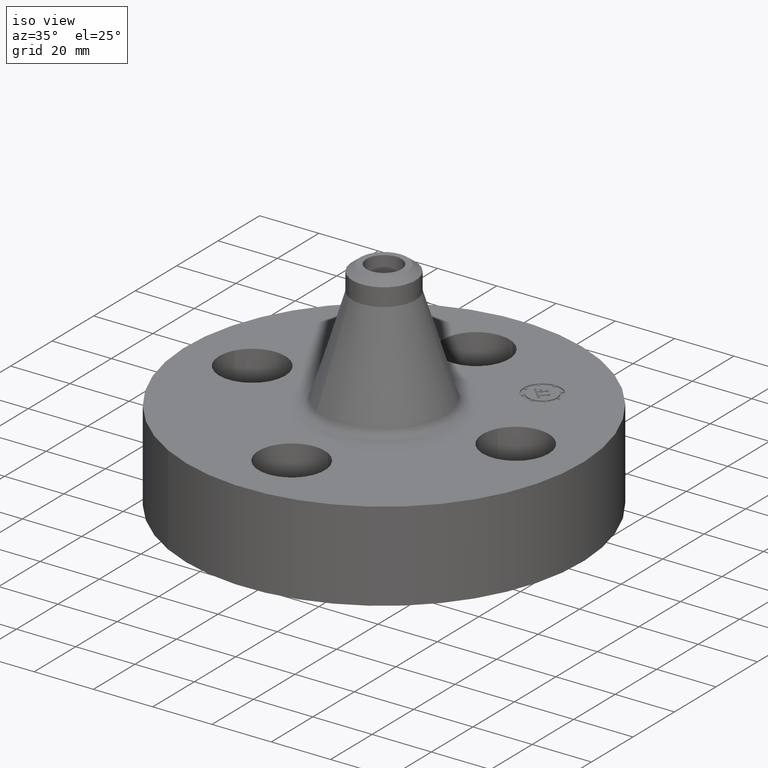
[diagram: clean part render]
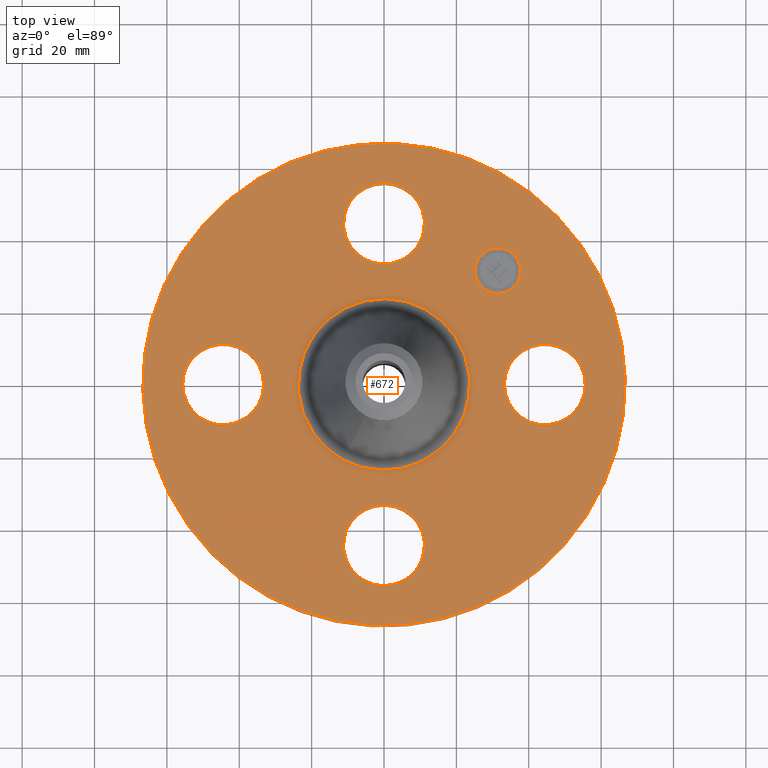
[diagram: tour spotlight — one face highlighted and labeled with its STEP entity id]
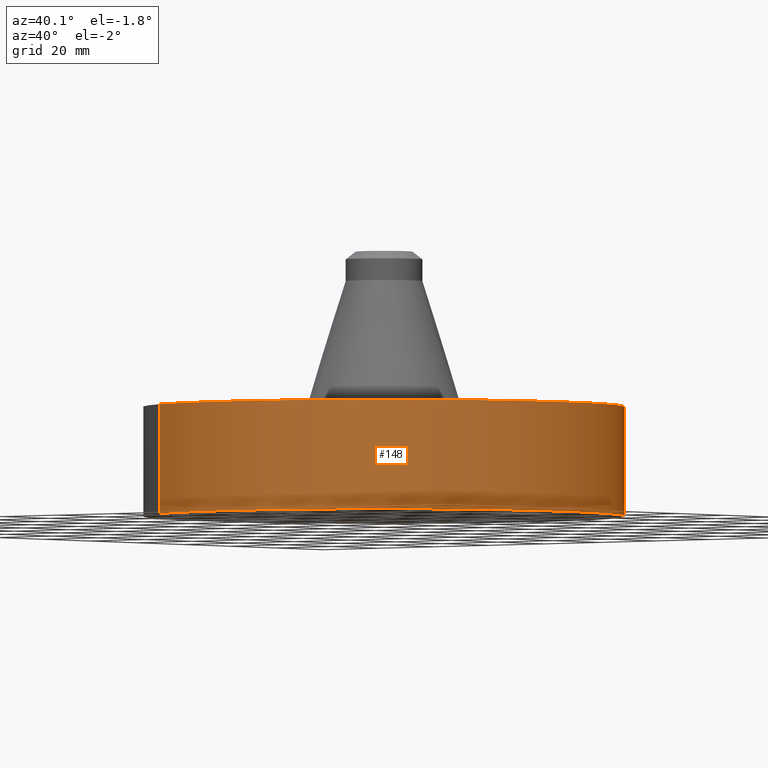
[diagram: tour spotlight — one face highlighted and labeled with its STEP entity id]
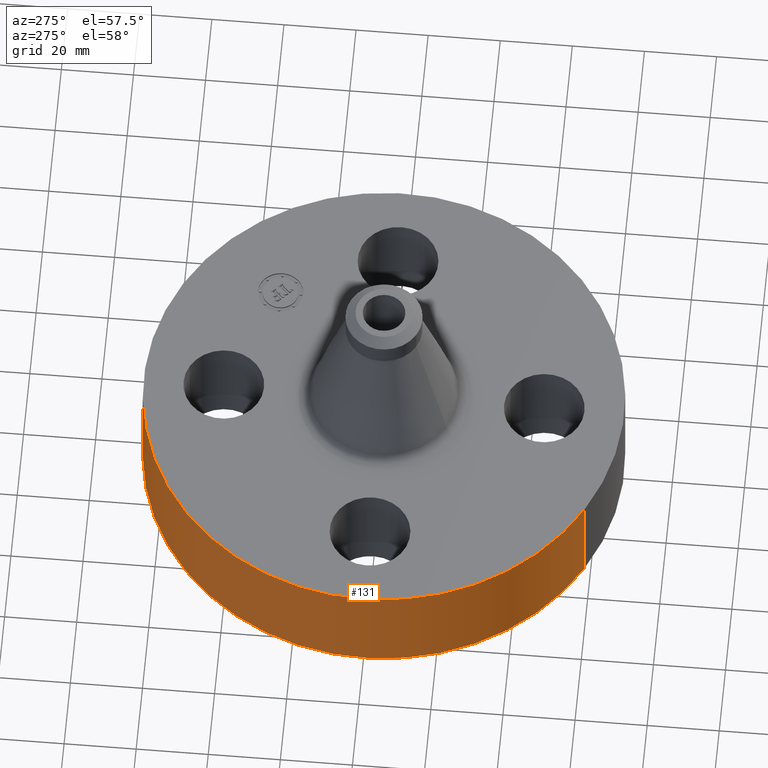
[diagram: tour spotlight — one face highlighted and labeled with its STEP entity id]
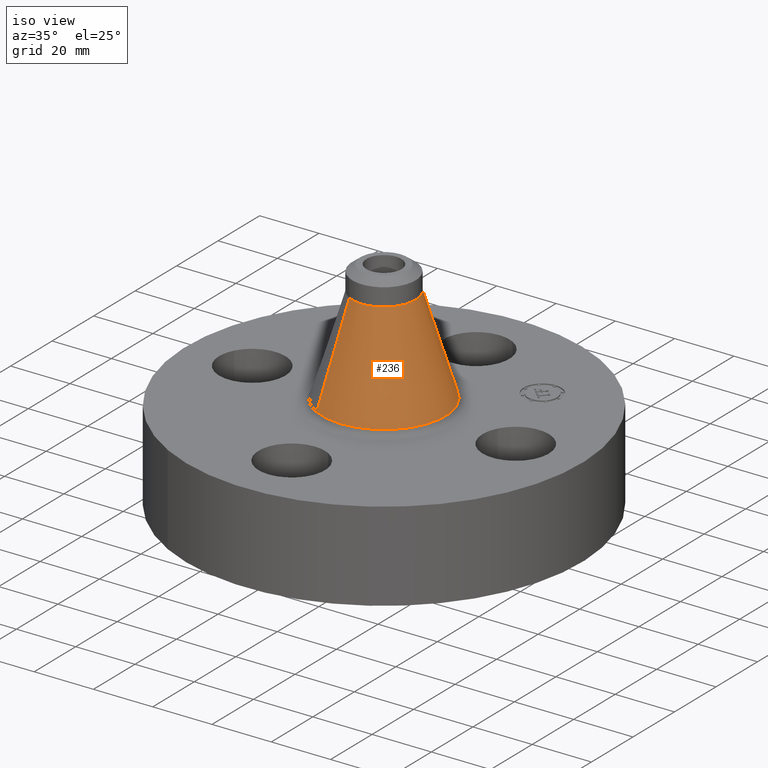
[diagram: tour spotlight — one face highlighted and labeled with its STEP entity id]
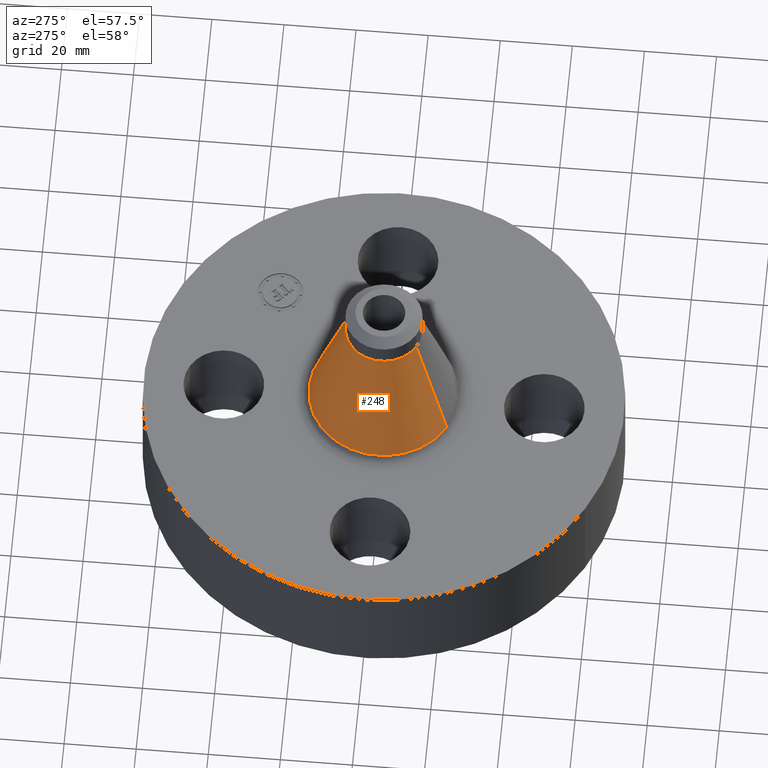
[diagram: tour spotlight — one face highlighted and labeled with its STEP entity id]
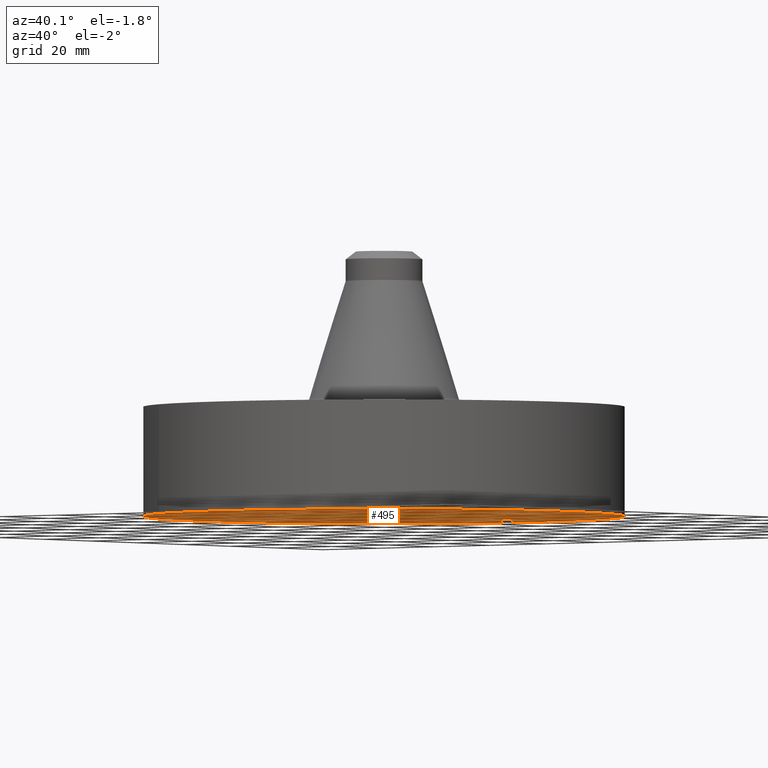
[diagram: tour spotlight — one face highlighted and labeled with its STEP entity id]
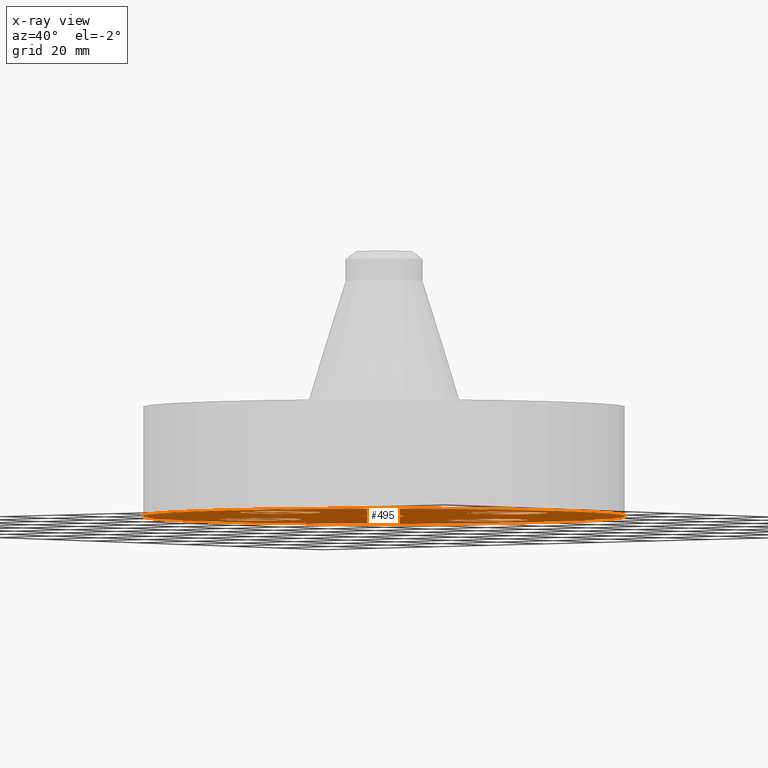
[diagram: x-ray of the same camera — body ghosted, this tour face saturated]
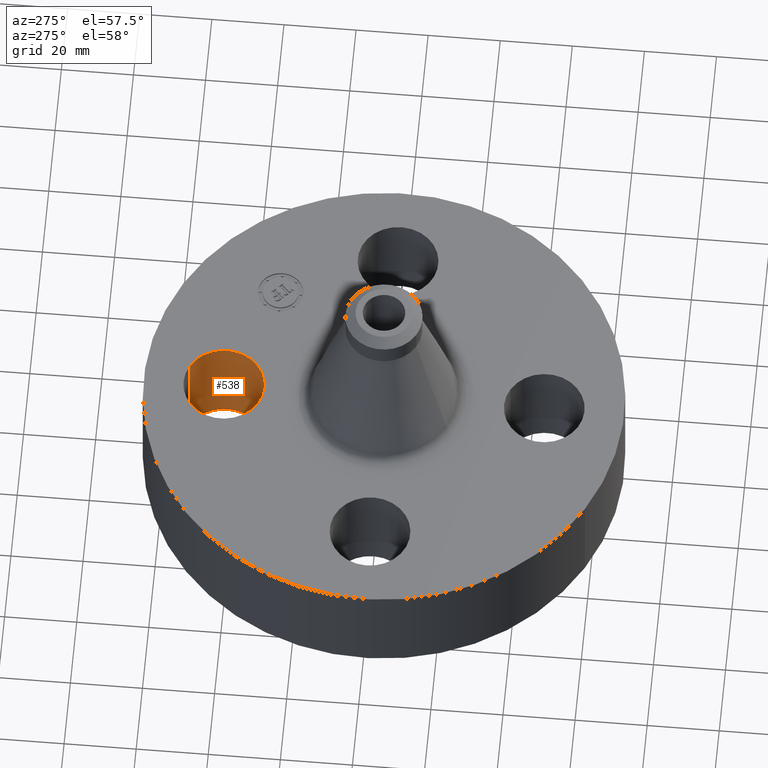
[diagram: tour spotlight — one face highlighted and labeled with its STEP entity id]
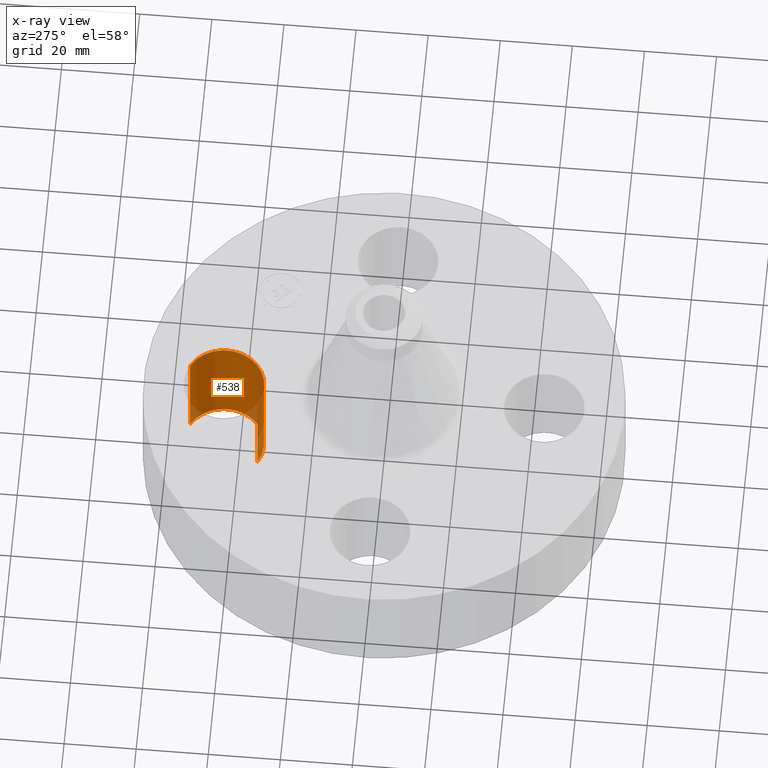
[diagram: x-ray of the same camera — body ghosted, this tour face saturated]
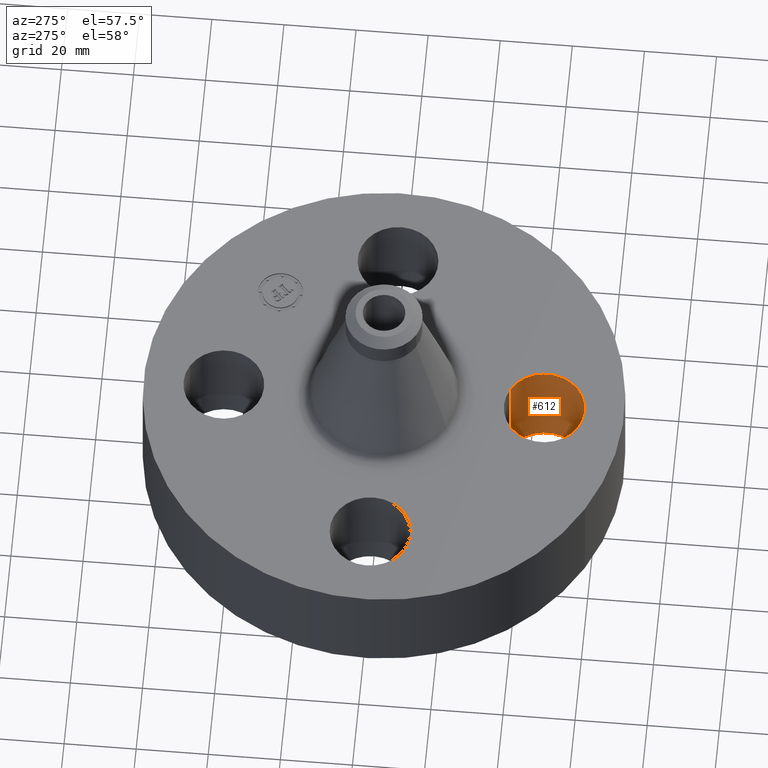
[diagram: tour spotlight — one face highlighted and labeled with its STEP entity id]
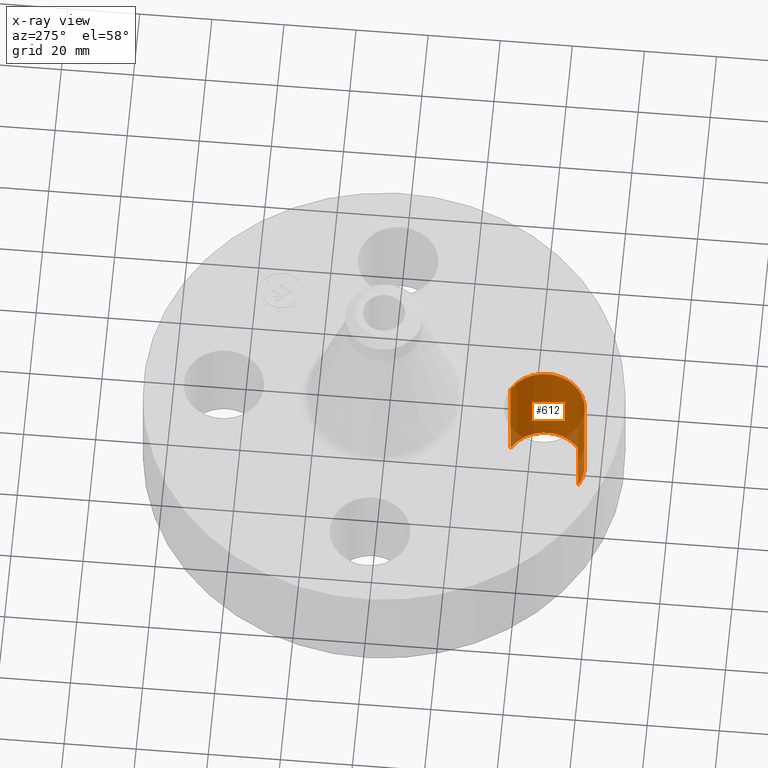
[diagram: x-ray of the same camera — body ghosted, this tour face saturated]
A machine part: a face-by-face anatomy tour. The part has 408 B-rep faces; the first image is the clean iso view, then the 8 largest visible faces are spotlighted one at a time (largest first), each with its STEP entity span.

Face 1 — top view, entity #672. In plain terms, the highlighted planar face has unit normal (0, 0, -1).
Definition (entity closure, byte-faithful):
#65=AXIS2_PLACEMENT_3D('Circle Axis2P3D',#63,#64,$) ;
#82=AXIS2_PLACEMENT_3D('Circle Axis2P3D',#80,#81,$) ;
#115=AXIS2_PLACEMENT_3D('Circle Axis2P3D',#113,#114,$) ;
#139=AXIS2_PLACEMENT_3D('Circle Axis2P3D',#137,#138,$) ;
#156=AXIS2_PLACEMENT_3D('Circle Axis2P3D',#154,#155,$) ;
#191=AXIS2_PLACEMENT_3D('Circle Axis2P3D',#189,#190,$) ;
#517=AXIS2_PLACEMENT_3D('Circle Axis2P3D',#515,#516,$) ;
#529=AXIS2_PLACEMENT_3D('Circle Axis2P3D',#527,#528,$) ;
#560=AXIS2_PLACEMENT_3D('Circle Axis2P3D',#558,#559,$) ;
#572=AXIS2_PLACEMENT_3D('Circle Axis2P3D',#570,#571,$) ;
#603=AXIS2_PLACEMENT_3D('Circle Axis2P3D',#601,#602,$) ;
#615=AXIS2_PLACEMENT_3D('Circle Axis2P3D',#613,#614,$) ;
#628=AXIS2_PLACEMENT_3D('Plane Axis2P3D',#625,#626,#627) ;
#656=AXIS2_PLACEMENT_3D('Circle Axis2P3D',#654,#655,$) ;
#665=AXIS2_PLACEMENT_3D('Circle Axis2P3D',#663,#664,$) ;
#46=CARTESIAN_POINT('Vertex',(1.36386367277,0.210947236987,1.19)) ;
#60=CARTESIAN_POINT('Vertex',(2.13613632724,-0.210947236987,1.19)) ;
#63=CARTESIAN_POINT('Axis2P3D Location',(1.75000000001,0.,1.19)) ;
#80=CARTESIAN_POINT('Axis2P3D Location',(1.75000000001,0.,1.19)) ;
#110=CARTESIAN_POINT('Vertex',(-1.25849203884,-2.30365422497,1.19)) ;
#113=CARTESIAN_POINT('Axis2P3D Location',(0.,0.,1.19)) ;
#117=CARTESIAN_POINT('Vertex',(1.25849203884,2.30365422497,1.19)) ;
#137=CARTESIAN_POINT('Axis2P3D Location',(0.,0.,1.19)) ;
#154=CARTESIAN_POINT('Axis2P3D Location',(0.,0.,1.19)) ;
#158=CARTESIAN_POINT('Vertex',(0.44750257712,0.819147972853,1.19)) ;
#160=CARTESIAN_POINT('Vertex',(-0.44750257712,-0.819147972853,1.19)) ;
#189=CARTESIAN_POINT('Axis2P3D Location',(0.,0.,1.19)) ;
#505=CARTESIAN_POINT('Vertex',(-0.210947236987,1.36386367277,1.19)) ;
#512=CARTESIAN_POINT('Vertex',(0.210947236987,2.13613632724,1.19)) ;
#515=CARTESIAN_POINT('Axis2P3D Location',(-3.21469784777E-016,1.75000000001,1.19)) ;
#527=CARTESIAN_POINT('Axis2P3D Location',(-3.21469784777E-016,1.75000000001,1.19)) ;
#548=CARTESIAN_POINT('Vertex',(-1.36386367277,-0.210947236987,1.19)) ;
#555=CARTESIAN_POINT('Vertex',(-2.13613632724,0.210947236987,1.19)) ;
#558=CARTESIAN_POINT('Axis2P3D Location',(-1.75000000001,-2.14313189852E-016,1.19)) ;
#570=CARTESIAN_POINT('Axis2P3D Location',(-1.75000000001,-2.14313189852E-016,1.19)) ;
#591=CARTESIAN_POINT('Vertex',(0.210947236987,-1.36386367277,1.19)) ;
#598=CARTESIAN_POINT('Vertex',(-0.210947236987,-2.13613632724,1.19)) ;
#601=CARTESIAN_POINT('Axis2P3D Location',(1.07156594926E-016,-1.75000000001,1.19)) ;
#613=CARTESIAN_POINT('Axis2P3D Location',(1.07156594926E-016,-1.75000000001,1.19)) ;
#625=CARTESIAN_POINT('Axis2P3D Location',(0.,2.62500000001,1.19)) ;
#654=CARTESIAN_POINT('Axis2P3D Location',(1.23743686708,1.23743686708,1.19)) ;
#658=CARTESIAN_POINT('Vertex',(1.06242793874,1.41244579543,1.19)) ;
#660=CARTESIAN_POINT('Vertex',(1.41244579543,1.06242793874,1.19)) ;
#663=CARTESIAN_POINT('Axis2P3D Location',(1.23743686708,1.23743686708,1.19)) ;
#64=DIRECTION('Axis2P3D Direction',(0.,-0.,-0.0393700787402)) ;
#81=DIRECTION('Axis2P3D Direction',(0.,-0.,-0.0393700787402)) ;
#114=DIRECTION('Axis2P3D Direction',(0.,0.,-0.0393700787402)) ;
#138=DIRECTION('Axis2P3D Direction',(0.,0.,-0.0393700787402)) ;
#155=DIRECTION('Axis2P3D Direction',(0.,0.,-0.0393700787402)) ;
#190=DIRECTION('Axis2P3D Direction',(0.,0.,-0.0393700787402)) ;
#516=DIRECTION('Axis2P3D Direction',(0.,0.,-0.0393700787402)) ;
#528=DIRECTION('Axis2P3D Direction',(0.,0.,-0.0393700787402)) ;
#559=DIRECTION('Axis2P3D Direction',(-0.,0.,-0.0393700787402)) ;
#571=DIRECTION('Axis2P3D Direction',(-0.,0.,-0.0393700787402)) ;
#602=DIRECTION('Axis2P3D Direction',(0.,-0.,-0.0393700787402)) ;
#614=DIRECTION('Axis2P3D Direction',(0.,-0.,-0.0393700787402)) ;
#626=DIRECTION('Axis2P3D Direction',(0.,0.,-0.0393700787402)) ;
#627=DIRECTION('Axis2P3D XDirection',(0.0393700787402,0.,0.)) ;
#655=DIRECTION('Axis2P3D Direction',(0.,0.,-0.0393700787402)) ;
#664=DIRECTION('Axis2P3D Direction',(0.,0.,-0.0393700787402)) ;
#631=ORIENTED_EDGE('',*,*,#141,.F.) ;
#632=ORIENTED_EDGE('',*,*,#119,.F.) ;
#635=ORIENTED_EDGE('',*,*,#67,.T.) ;
#636=ORIENTED_EDGE('',*,*,#84,.T.) ;
#639=ORIENTED_EDGE('',*,*,#193,.T.) ;
#640=ORIENTED_EDGE('',*,*,#162,.T.) ;
#643=ORIENTED_EDGE('',*,*,#617,.T.) ;
#644=ORIENTED_EDGE('',*,*,#605,.T.) ;
#647=ORIENTED_EDGE('',*,*,#574,.T.) ;
#648=ORIENTED_EDGE('',*,*,#562,.T.) ;
#651=ORIENTED_EDGE('',*,*,#531,.T.) ;
#652=ORIENTED_EDGE('',*,*,#519,.T.) ;
#669=ORIENTED_EDGE('',*,*,#662,.T.) ;
#670=ORIENTED_EDGE('',*,*,#667,.T.) ;
#637=FACE_BOUND('',#634,.T.) ;
#641=FACE_BOUND('',#638,.T.) ;
#645=FACE_BOUND('',#642,.T.) ;
#649=FACE_BOUND('',#646,.T.) ;
#653=FACE_BOUND('',#650,.T.) ;
#671=FACE_BOUND('',#668,.T.) ;
#672=ADVANCED_FACE('PartBody',(#633,#637,#641,#645,#649,#653,#671),#629,.F.) ;
#66=CIRCLE('generated circle',#65,0.440000000002) ;
#83=CIRCLE('generated circle',#82,0.440000000002) ;
#116=CIRCLE('generated circle',#115,2.62500000001) ;
#140=CIRCLE('generated circle',#139,2.62500000001) ;
#157=CIRCLE('generated circle',#156,0.933414140646) ;
#192=CIRCLE('generated circle',#191,0.933414140646) ;
#518=CIRCLE('generated circle',#517,0.440000000002) ;
#530=CIRCLE('generated circle',#529,0.440000000002) ;
#561=CIRCLE('generated circle',#560,0.440000000002) ;
#573=CIRCLE('generated circle',#572,0.440000000002) ;
#604=CIRCLE('generated circle',#603,0.440000000002) ;
#616=CIRCLE('generated circle',#615,0.440000000002) ;
#657=CIRCLE('generated circle',#656,0.247500000001) ;
#666=CIRCLE('generated circle',#665,0.247500000001) ;
#67=EDGE_CURVE('',#47,#61,#66,.T.) ;
#84=EDGE_CURVE('',#61,#47,#83,.T.) ;
#119=EDGE_CURVE('',#111,#118,#116,.T.) ;
#141=EDGE_CURVE('',#118,#111,#140,.T.) ;
#162=EDGE_CURVE('',#159,#161,#157,.T.) ;
#193=EDGE_CURVE('',#161,#159,#192,.T.) ;
#519=EDGE_CURVE('',#506,#513,#518,.T.) ;
#531=EDGE_CURVE('',#513,#506,#530,.T.) ;
#562=EDGE_CURVE('',#549,#556,#561,.T.) ;
#574=EDGE_CURVE('',#556,#549,#573,.T.) ;
#605=EDGE_CURVE('',#592,#599,#604,.T.) ;
#617=EDGE_CURVE('',#599,#592,#616,.T.) ;
#662=EDGE_CURVE('',#659,#661,#657,.T.) ;
#667=EDGE_CURVE('',#661,#659,#666,.T.) ;
#630=EDGE_LOOP('',(#631,#632)) ;
#634=EDGE_LOOP('',(#635,#636)) ;
#638=EDGE_LOOP('',(#639,#640)) ;
#642=EDGE_LOOP('',(#643,#644)) ;
#646=EDGE_LOOP('',(#647,#648)) ;
#650=EDGE_LOOP('',(#651,#652)) ;
#668=EDGE_LOOP('',(#669,#670)) ;
#633=FACE_OUTER_BOUND('',#630,.T.) ;
#629=PLANE('',#628) ;
#47=VERTEX_POINT('',#46) ;
#61=VERTEX_POINT('',#60) ;
#111=VERTEX_POINT('',#110) ;
#118=VERTEX_POINT('',#117) ;
#159=VERTEX_POINT('',#158) ;
#161=VERTEX_POINT('',#160) ;
#506=VERTEX_POINT('',#505) ;
#513=VERTEX_POINT('',#512) ;
#549=VERTEX_POINT('',#548) ;
#556=VERTEX_POINT('',#555) ;
#592=VERTEX_POINT('',#591) ;
#599=VERTEX_POINT('',#598) ;
#659=VERTEX_POINT('',#658) ;
#661=VERTEX_POINT('',#660) ;

Face 2 — auxiliary view, entity #148. In plain terms, the highlighted cylindrical surface (partial cylindrical patch) has radius 66.675 mm, axis along (0, 0, -1).
Definition (entity closure, byte-faithful):
#95=AXIS2_PLACEMENT_3D('Cylinder Axis2P3D',#92,#93,#94) ;
#134=AXIS2_PLACEMENT_3D('Circle Axis2P3D',#132,#133,$) ;
#139=AXIS2_PLACEMENT_3D('Circle Axis2P3D',#137,#138,$) ;
#92=CARTESIAN_POINT('Axis2P3D Location',(0.,0.,1.44000000001)) ;
#101=CARTESIAN_POINT('Vertex',(-1.25849203884,-2.30365422497,0.)) ;
#103=CARTESIAN_POINT('Vertex',(1.25849203884,2.30365422497,0.)) ;
#106=CARTESIAN_POINT('Line Origine',(-1.25849203884,-2.30365422497,0.595000000002)) ;
#110=CARTESIAN_POINT('Vertex',(-1.25849203884,-2.30365422497,1.19)) ;
#117=CARTESIAN_POINT('Vertex',(1.25849203884,2.30365422497,1.19)) ;
#120=CARTESIAN_POINT('Line Origine',(1.25849203884,2.30365422497,0.595000000002)) ;
#132=CARTESIAN_POINT('Axis2P3D Location',(0.,0.,0.)) ;
#137=CARTESIAN_POINT('Axis2P3D Location',(0.,0.,1.19)) ;
#93=DIRECTION('Axis2P3D Direction',(0.,0.,-0.0393700787402)) ;
#94=DIRECTION('Axis2P3D XDirection',(0.0188750212049,0.0345504945626,0.)) ;
#107=DIRECTION('Vector Direction',(0.,0.,-0.0393700787402)) ;
#121=DIRECTION('Vector Direction',(0.,0.,-0.0393700787402)) ;
#133=DIRECTION('Axis2P3D Direction',(0.,0.,-0.0393700787402)) ;
#138=DIRECTION('Axis2P3D Direction',(0.,0.,-0.0393700787402)) ;
#108=VECTOR('Line Direction',#107,0.0393700787402) ;
#122=VECTOR('Line Direction',#121,0.0393700787402) ;
#143=ORIENTED_EDGE('',*,*,#136,.F.) ;
#144=ORIENTED_EDGE('',*,*,#124,.T.) ;
#145=ORIENTED_EDGE('',*,*,#141,.T.) ;
#146=ORIENTED_EDGE('',*,*,#112,.F.) ;
#148=ADVANCED_FACE('PartBody',(#147),#96,.T.) ;
#135=CIRCLE('generated circle',#134,2.62500000001) ;
#140=CIRCLE('generated circle',#139,2.62500000001) ;
#96=CYLINDRICAL_SURFACE('generated cylinder',#95,2.62500000001) ;
#112=EDGE_CURVE('',#102,#111,#109,.F.) ;
#124=EDGE_CURVE('',#104,#118,#123,.F.) ;
#136=EDGE_CURVE('',#104,#102,#135,.T.) ;
#141=EDGE_CURVE('',#118,#111,#140,.T.) ;
#142=EDGE_LOOP('',(#143,#144,#145,#146)) ;
#147=FACE_OUTER_BOUND('',#142,.T.) ;
#109=LINE('Line',#106,#108) ;
#123=LINE('Line',#120,#122) ;
#102=VERTEX_POINT('',#101) ;
#104=VERTEX_POINT('',#103) ;
#111=VERTEX_POINT('',#110) ;
#118=VERTEX_POINT('',#117) ;

Face 3 — auxiliary view, entity #131. In plain terms, the highlighted cylindrical surface (partial cylindrical patch) has radius 66.675 mm, axis along (0, 0, -1).
Definition (entity closure, byte-faithful):
#95=AXIS2_PLACEMENT_3D('Cylinder Axis2P3D',#92,#93,#94) ;
#99=AXIS2_PLACEMENT_3D('Circle Axis2P3D',#97,#98,$) ;
#115=AXIS2_PLACEMENT_3D('Circle Axis2P3D',#113,#114,$) ;
#92=CARTESIAN_POINT('Axis2P3D Location',(0.,0.,1.44000000001)) ;
#97=CARTESIAN_POINT('Axis2P3D Location',(0.,0.,0.)) ;
#101=CARTESIAN_POINT('Vertex',(-1.25849203884,-2.30365422497,0.)) ;
#103=CARTESIAN_POINT('Vertex',(1.25849203884,2.30365422497,0.)) ;
#106=CARTESIAN_POINT('Line Origine',(-1.25849203884,-2.30365422497,0.595000000002)) ;
#110=CARTESIAN_POINT('Vertex',(-1.25849203884,-2.30365422497,1.19)) ;
#113=CARTESIAN_POINT('Axis2P3D Location',(0.,0.,1.19)) ;
#117=CARTESIAN_POINT('Vertex',(1.25849203884,2.30365422497,1.19)) ;
#120=CARTESIAN_POINT('Line Origine',(1.25849203884,2.30365422497,0.595000000002)) ;
#93=DIRECTION('Axis2P3D Direction',(0.,0.,-0.0393700787402)) ;
#94=DIRECTION('Axis2P3D XDirection',(0.0188750212049,0.0345504945626,0.)) ;
#98=DIRECTION('Axis2P3D Direction',(0.,0.,-0.0393700787402)) ;
#107=DIRECTION('Vector Direction',(0.,0.,-0.0393700787402)) ;
#114=DIRECTION('Axis2P3D Direction',(0.,0.,-0.0393700787402)) ;
#121=DIRECTION('Vector Direction',(0.,0.,-0.0393700787402)) ;
#108=VECTOR('Line Direction',#107,0.0393700787402) ;
#122=VECTOR('Line Direction',#121,0.0393700787402) ;
#126=ORIENTED_EDGE('',*,*,#105,.F.) ;
#127=ORIENTED_EDGE('',*,*,#112,.T.) ;
#128=ORIENTED_EDGE('',*,*,#119,.T.) ;
#129=ORIENTED_EDGE('',*,*,#124,.F.) ;
#131=ADVANCED_FACE('PartBody',(#130),#96,.T.) ;
#100=CIRCLE('generated circle',#99,2.62500000001) ;
#116=CIRCLE('generated circle',#115,2.62500000001) ;
#96=CYLINDRICAL_SURFACE('generated cylinder',#95,2.62500000001) ;
#105=EDGE_CURVE('',#102,#104,#100,.T.) ;
#112=EDGE_CURVE('',#102,#111,#109,.F.) ;
#119=EDGE_CURVE('',#111,#118,#116,.T.) ;
#124=EDGE_CURVE('',#104,#118,#123,.F.) ;
#125=EDGE_LOOP('',(#126,#127,#128,#129)) ;
#130=FACE_OUTER_BOUND('',#125,.T.) ;
#109=LINE('Line',#106,#108) ;
#123=LINE('Line',#120,#122) ;
#102=VERTEX_POINT('',#101) ;
#104=VERTEX_POINT('',#103) ;
#111=VERTEX_POINT('',#110) ;
#118=VERTEX_POINT('',#117) ;

Face 4 — iso view, entity #236. In plain terms, the highlighted conical surface has half-angle 17.236 deg.
Definition (entity closure, byte-faithful):
#172=AXIS2_PLACEMENT_3D('Circle Axis2P3D',#170,#171,$) ;
#209=AXIS2_PLACEMENT_3D('Cone Axis2P3D',#206,#207,#208) ;
#220=AXIS2_PLACEMENT_3D('Circle Axis2P3D',#218,#219,$) ;
#167=CARTESIAN_POINT('Vertex',(0.392554969338,0.71856705147,1.27444386617)) ;
#170=CARTESIAN_POINT('Axis2P3D Location',(0.,0.,1.27444386617)) ;
#174=CARTESIAN_POINT('Vertex',(-0.392554969338,-0.71856705147,1.27444386617)) ;
#206=CARTESIAN_POINT('Axis2P3D Location',(0.,0.,2.5599415017)) ;
#211=CARTESIAN_POINT('Line Origine',(0.296956847776,0.543575863733,1.91719268394)) ;
#215=CARTESIAN_POINT('Vertex',(0.201358726215,0.368584675995,2.5599415017)) ;
#218=CARTESIAN_POINT('Axis2P3D Location',(0.,0.,2.5599415017)) ;
#222=CARTESIAN_POINT('Vertex',(-0.201358726215,-0.368584675995,2.5599415017)) ;
#225=CARTESIAN_POINT('Line Origine',(-0.296956847776,-0.543575863733,1.91719268394)) ;
#171=DIRECTION('Axis2P3D Direction',(0.,0.,-0.0393700787402)) ;
#207=DIRECTION('Axis2P3D Direction',(0.,0.,-0.0393700787402)) ;
#208=DIRECTION('Axis2P3D XDirection',(-0.0188750212049,-0.0345504945626,0.)) ;
#212=DIRECTION('Vector Direction',(0.00559268983364,0.0102373500718,-0.0376021486612)) ;
#219=DIRECTION('Axis2P3D Direction',(0.,0.,-0.0393700787402)) ;
#226=DIRECTION('Vector Direction',(-0.00559268983364,-0.0102373500718,-0.0376021486612)) ;
#213=VECTOR('Line Direction',#212,0.0393700787402) ;
#227=VECTOR('Line Direction',#226,0.0393700787402) ;
#231=ORIENTED_EDGE('',*,*,#176,.F.) ;
#232=ORIENTED_EDGE('',*,*,#217,.T.) ;
#233=ORIENTED_EDGE('',*,*,#224,.T.) ;
#234=ORIENTED_EDGE('',*,*,#229,.F.) ;
#236=ADVANCED_FACE('PartBody',(#235),#210,.T.) ;
#173=CIRCLE('generated circle',#172,0.818802791526) ;
#221=CIRCLE('generated circle',#220,0.420000000002) ;
#210=CONICAL_SURFACE('Cone',#209,0.420000000002,0.300817520792) ;
#176=EDGE_CURVE('',#168,#175,#173,.T.) ;
#217=EDGE_CURVE('',#168,#216,#214,.F.) ;
#224=EDGE_CURVE('',#216,#223,#221,.T.) ;
#229=EDGE_CURVE('',#175,#223,#228,.F.) ;
#230=EDGE_LOOP('',(#231,#232,#233,#234)) ;
#235=FACE_OUTER_BOUND('',#230,.T.) ;
#214=LINE('Line',#211,#213) ;
#228=LINE('Line',#225,#227) ;
#168=VERTEX_POINT('',#167) ;
#175=VERTEX_POINT('',#174) ;
#216=VERTEX_POINT('',#215) ;
#223=VERTEX_POINT('',#222) ;

Face 5 — auxiliary view, entity #248. In plain terms, the highlighted conical surface has half-angle 17.236 deg.
Definition (entity closure, byte-faithful):
#196=AXIS2_PLACEMENT_3D('Circle Axis2P3D',#194,#195,$) ;
#209=AXIS2_PLACEMENT_3D('Cone Axis2P3D',#206,#207,#208) ;
#239=AXIS2_PLACEMENT_3D('Circle Axis2P3D',#237,#238,$) ;
#167=CARTESIAN_POINT('Vertex',(0.392554969338,0.71856705147,1.27444386617)) ;
#174=CARTESIAN_POINT('Vertex',(-0.392554969338,-0.71856705147,1.27444386617)) ;
#194=CARTESIAN_POINT('Axis2P3D Location',(0.,0.,1.27444386617)) ;
#206=CARTESIAN_POINT('Axis2P3D Location',(0.,0.,2.5599415017)) ;
#211=CARTESIAN_POINT('Line Origine',(0.296956847776,0.543575863733,1.91719268394)) ;
#215=CARTESIAN_POINT('Vertex',(0.201358726215,0.368584675995,2.5599415017)) ;
#222=CARTESIAN_POINT('Vertex',(-0.201358726215,-0.368584675995,2.5599415017)) ;
#225=CARTESIAN_POINT('Line Origine',(-0.296956847776,-0.543575863733,1.91719268394)) ;
#237=CARTESIAN_POINT('Axis2P3D Location',(0.,0.,2.5599415017)) ;
#195=DIRECTION('Axis2P3D Direction',(0.,0.,-0.0393700787402)) ;
#207=DIRECTION('Axis2P3D Direction',(0.,0.,-0.0393700787402)) ;
#208=DIRECTION('Axis2P3D XDirection',(-0.0188750212049,-0.0345504945626,0.)) ;
#212=DIRECTION('Vector Direction',(0.00559268983364,0.0102373500718,-0.0376021486612)) ;
#226=DIRECTION('Vector Direction',(-0.00559268983364,-0.0102373500718,-0.0376021486612)) ;
#238=DIRECTION('Axis2P3D Direction',(0.,0.,-0.0393700787402)) ;
#213=VECTOR('Line Direction',#212,0.0393700787402) ;
#227=VECTOR('Line Direction',#226,0.0393700787402) ;
#243=ORIENTED_EDGE('',*,*,#198,.F.) ;
#244=ORIENTED_EDGE('',*,*,#229,.T.) ;
#245=ORIENTED_EDGE('',*,*,#241,.T.) ;
#246=ORIENTED_EDGE('',*,*,#217,.F.) ;
#248=ADVANCED_FACE('PartBody',(#247),#210,.T.) ;
#197=CIRCLE('generated circle',#196,0.818802791526) ;
#240=CIRCLE('generated circle',#239,0.420000000002) ;
#210=CONICAL_SURFACE('Cone',#209,0.420000000002,0.300817520792) ;
#198=EDGE_CURVE('',#175,#168,#197,.T.) ;
#217=EDGE_CURVE('',#168,#216,#214,.F.) ;
#229=EDGE_CURVE('',#175,#223,#228,.F.) ;
#241=EDGE_CURVE('',#223,#216,#240,.T.) ;
#242=EDGE_LOOP('',(#243,#244,#245,#246)) ;
#247=FACE_OUTER_BOUND('',#242,.T.) ;
#214=LINE('Line',#211,#213) ;
#228=LINE('Line',#225,#227) ;
#168=VERTEX_POINT('',#167) ;
#175=VERTEX_POINT('',#174) ;
#216=VERTEX_POINT('',#215) ;
#223=VERTEX_POINT('',#222) ;

Face 6 — auxiliary view, entity #495. An x-ray twin of the same camera follows (body ghosted, this face saturated) — the face is partly hidden behind the body. In plain terms, the highlighted planar face has unit normal (0, 0, -1).
Definition (entity closure, byte-faithful):
#51=AXIS2_PLACEMENT_3D('Circle Axis2P3D',#49,#50,$) ;
#77=AXIS2_PLACEMENT_3D('Circle Axis2P3D',#75,#76,$) ;
#99=AXIS2_PLACEMENT_3D('Circle Axis2P3D',#97,#98,$) ;
#134=AXIS2_PLACEMENT_3D('Circle Axis2P3D',#132,#133,$) ;
#395=AXIS2_PLACEMENT_3D('Circle Axis2P3D',#393,#394,$) ;
#414=AXIS2_PLACEMENT_3D('Circle Axis2P3D',#412,#413,$) ;
#427=AXIS2_PLACEMENT_3D('Plane Axis2P3D',#424,#425,#426) ;
#443=AXIS2_PLACEMENT_3D('Circle Axis2P3D',#441,#442,$) ;
#452=AXIS2_PLACEMENT_3D('Circle Axis2P3D',#450,#451,$) ;
#461=AXIS2_PLACEMENT_3D('Circle Axis2P3D',#459,#460,$) ;
#470=AXIS2_PLACEMENT_3D('Circle Axis2P3D',#468,#469,$) ;
#479=AXIS2_PLACEMENT_3D('Circle Axis2P3D',#477,#478,$) ;
#488=AXIS2_PLACEMENT_3D('Circle Axis2P3D',#486,#487,$) ;
#44=CARTESIAN_POINT('Vertex',(1.36386367277,0.210947236987,0.)) ;
#49=CARTESIAN_POINT('Axis2P3D Location',(1.75000000001,0.,0.)) ;
#53=CARTESIAN_POINT('Vertex',(2.13613632724,-0.210947236987,0.)) ;
#75=CARTESIAN_POINT('Axis2P3D Location',(1.75000000001,0.,0.)) ;
#97=CARTESIAN_POINT('Axis2P3D Location',(0.,0.,0.)) ;
#101=CARTESIAN_POINT('Vertex',(-1.25849203884,-2.30365422497,0.)) ;
#103=CARTESIAN_POINT('Vertex',(1.25849203884,2.30365422497,0.)) ;
#132=CARTESIAN_POINT('Axis2P3D Location',(0.,0.,0.)) ;
#390=CARTESIAN_POINT('Vertex',(-0.111226724957,-0.203599154359,-4.19611851827E-015)) ;
#393=CARTESIAN_POINT('Axis2P3D Location',(0.,0.,-4.47585975282E-015)) ;
#397=CARTESIAN_POINT('Vertex',(0.111226724957,0.203599154359,-4.19611851827E-015)) ;
#412=CARTESIAN_POINT('Axis2P3D Location',(0.,0.,-4.47585975282E-015)) ;
#424=CARTESIAN_POINT('Axis2P3D Location',(0.,0.232000000001,0.)) ;
#441=CARTESIAN_POINT('Axis2P3D Location',(1.74838271595E-016,-1.75000000001,0.)) ;
#445=CARTESIAN_POINT('Vertex',(0.210947236987,-1.36386367277,0.)) ;
#447=CARTESIAN_POINT('Vertex',(-0.210947236987,-2.13613632724,0.)) ;
#450=CARTESIAN_POINT('Axis2P3D Location',(3.49676543189E-017,-1.75000000001,0.)) ;
#459=CARTESIAN_POINT('Axis2P3D Location',(-1.75000000001,-1.74838271595E-016,0.)) ;
#463=CARTESIAN_POINT('Vertex',(-1.36386367277,-0.210947236987,0.)) ;
#465=CARTESIAN_POINT('Vertex',(-2.13613632724,0.210947236987,0.)) ;
#468=CARTESIAN_POINT('Axis2P3D Location',(-1.75000000001,-1.74838271595E-016,0.)) ;
#477=CARTESIAN_POINT('Axis2P3D Location',(-3.1470888887E-016,1.75000000001,0.)) ;
#481=CARTESIAN_POINT('Vertex',(-0.210947236987,1.36386367277,0.)) ;
#483=CARTESIAN_POINT('Vertex',(0.210947236987,2.13613632724,0.)) ;
#486=CARTESIAN_POINT('Axis2P3D Location',(-4.19611851827E-016,1.75000000001,0.)) ;
#50=DIRECTION('Axis2P3D Direction',(0.,-0.,-0.0393700787402)) ;
#76=DIRECTION('Axis2P3D Direction',(0.,-0.,-0.0393700787402)) ;
#98=DIRECTION('Axis2P3D Direction',(0.,0.,-0.0393700787402)) ;
#133=DIRECTION('Axis2P3D Direction',(0.,0.,-0.0393700787402)) ;
#394=DIRECTION('Axis2P3D Direction',(0.,0.,-0.0393700787402)) ;
#413=DIRECTION('Axis2P3D Direction',(0.,0.,-0.0393700787402)) ;
#425=DIRECTION('Axis2P3D Direction',(0.,0.,-0.0393700787402)) ;
#426=DIRECTION('Axis2P3D XDirection',(0.0393700787402,0.,0.)) ;
#442=DIRECTION('Axis2P3D Direction',(0.,0.,-0.0393700787402)) ;
#451=DIRECTION('Axis2P3D Direction',(0.,0.,-0.0393700787402)) ;
#460=DIRECTION('Axis2P3D Direction',(0.,0.,-0.0393700787402)) ;
#469=DIRECTION('Axis2P3D Direction',(0.,0.,-0.0393700787402)) ;
#478=DIRECTION('Axis2P3D Direction',(0.,0.,-0.0393700787402)) ;
#487=DIRECTION('Axis2P3D Direction',(0.,0.,-0.0393700787402)) ;
#430=ORIENTED_EDGE('',*,*,#105,.T.) ;
#431=ORIENTED_EDGE('',*,*,#136,.T.) ;
#434=ORIENTED_EDGE('',*,*,#79,.F.) ;
#435=ORIENTED_EDGE('',*,*,#55,.F.) ;
#438=ORIENTED_EDGE('',*,*,#416,.F.) ;
#439=ORIENTED_EDGE('',*,*,#399,.F.) ;
#456=ORIENTED_EDGE('',*,*,#449,.F.) ;
#457=ORIENTED_EDGE('',*,*,#454,.F.) ;
#474=ORIENTED_EDGE('',*,*,#467,.F.) ;
#475=ORIENTED_EDGE('',*,*,#472,.F.) ;
#492=ORIENTED_EDGE('',*,*,#485,.F.) ;
#493=ORIENTED_EDGE('',*,*,#490,.F.) ;
#436=FACE_BOUND('',#433,.T.) ;
#440=FACE_BOUND('',#437,.T.) ;
#458=FACE_BOUND('',#455,.T.) ;
#476=FACE_BOUND('',#473,.T.) ;
#494=FACE_BOUND('',#491,.T.) ;
#495=ADVANCED_FACE('PartBody',(#432,#436,#440,#458,#476,#494),#428,.T.) ;
#52=CIRCLE('generated circle',#51,0.440000000002) ;
#78=CIRCLE('generated circle',#77,0.440000000002) ;
#100=CIRCLE('generated circle',#99,2.62500000001) ;
#135=CIRCLE('generated circle',#134,2.62500000001) ;
#396=CIRCLE('generated circle',#395,0.232000000001) ;
#415=CIRCLE('generated circle',#414,0.232000000001) ;
#444=CIRCLE('generated circle',#443,0.440000000002) ;
#453=CIRCLE('generated circle',#452,0.440000000002) ;
#462=CIRCLE('generated circle',#461,0.440000000002) ;
#471=CIRCLE('generated circle',#470,0.440000000002) ;
#480=CIRCLE('generated circle',#479,0.440000000002) ;
#489=CIRCLE('generated circle',#488,0.440000000002) ;
#55=EDGE_CURVE('',#45,#54,#52,.T.) ;
#79=EDGE_CURVE('',#54,#45,#78,.T.) ;
#105=EDGE_CURVE('',#102,#104,#100,.T.) ;
#136=EDGE_CURVE('',#104,#102,#135,.T.) ;
#399=EDGE_CURVE('',#391,#398,#396,.T.) ;
#416=EDGE_CURVE('',#398,#391,#415,.T.) ;
#449=EDGE_CURVE('',#446,#448,#444,.T.) ;
#454=EDGE_CURVE('',#448,#446,#453,.T.) ;
#467=EDGE_CURVE('',#464,#466,#462,.T.) ;
#472=EDGE_CURVE('',#466,#464,#471,.T.) ;
#485=EDGE_CURVE('',#482,#484,#480,.T.) ;
#490=EDGE_CURVE('',#484,#482,#489,.T.) ;
#429=EDGE_LOOP('',(#430,#431)) ;
#433=EDGE_LOOP('',(#434,#435)) ;
#437=EDGE_LOOP('',(#438,#439)) ;
#455=EDGE_LOOP('',(#456,#457)) ;
#473=EDGE_LOOP('',(#474,#475)) ;
#491=EDGE_LOOP('',(#492,#493)) ;
#432=FACE_OUTER_BOUND('',#429,.T.) ;
#428=PLANE('',#427) ;
#45=VERTEX_POINT('',#44) ;
#54=VERTEX_POINT('',#53) ;
#102=VERTEX_POINT('',#101) ;
#104=VERTEX_POINT('',#103) ;
#391=VERTEX_POINT('',#390) ;
#398=VERTEX_POINT('',#397) ;
#446=VERTEX_POINT('',#445) ;
#448=VERTEX_POINT('',#447) ;
#464=VERTEX_POINT('',#463) ;
#466=VERTEX_POINT('',#465) ;
#482=VERTEX_POINT('',#481) ;
#484=VERTEX_POINT('',#483) ;

Face 7 — auxiliary view, entity #538. An x-ray twin of the same camera follows (body ghosted, this face saturated) — the face is partly hidden behind the body. In plain terms, the highlighted cylindrical surface (partial cylindrical patch) has radius 11.176 mm, axis along (0, 0, -1).
Definition (entity closure, byte-faithful):
#488=AXIS2_PLACEMENT_3D('Circle Axis2P3D',#486,#487,$) ;
#499=AXIS2_PLACEMENT_3D('Cylinder Axis2P3D',#496,#497,#498) ;
#529=AXIS2_PLACEMENT_3D('Circle Axis2P3D',#527,#528,$) ;
#481=CARTESIAN_POINT('Vertex',(-0.210947236987,1.36386367277,0.)) ;
#483=CARTESIAN_POINT('Vertex',(0.210947236987,2.13613632724,0.)) ;
#486=CARTESIAN_POINT('Axis2P3D Location',(-4.19611851827E-016,1.75000000001,0.)) ;
#496=CARTESIAN_POINT('Axis2P3D Location',(-3.21469784777E-016,1.75000000001,1.18606299213)) ;
#501=CARTESIAN_POINT('Line Origine',(-0.210947236987,1.36386367277,0.595000000002)) ;
#505=CARTESIAN_POINT('Vertex',(-0.210947236987,1.36386367277,1.19)) ;
#508=CARTESIAN_POINT('Line Origine',(0.210947236987,2.13613632724,0.595000000002)) ;
#512=CARTESIAN_POINT('Vertex',(0.210947236987,2.13613632724,1.19)) ;
#527=CARTESIAN_POINT('Axis2P3D Location',(-3.21469784777E-016,1.75000000001,1.19)) ;
#487=DIRECTION('Axis2P3D Direction',(0.,0.,-0.0393700787402)) ;
#497=DIRECTION('Axis2P3D Direction',(0.,0.,-0.0393700787402)) ;
#498=DIRECTION('Axis2P3D XDirection',(0.0188750212049,0.0345504945626,0.)) ;
#502=DIRECTION('Vector Direction',(0.,0.,-0.0393700787402)) ;
#509=DIRECTION('Vector Direction',(0.,0.,-0.0393700787402)) ;
#528=DIRECTION('Axis2P3D Direction',(0.,0.,-0.0393700787402)) ;
#503=VECTOR('Line Direction',#502,0.0393700787402) ;
#510=VECTOR('Line Direction',#509,0.0393700787402) ;
#533=ORIENTED_EDGE('',*,*,#514,.F.) ;
#534=ORIENTED_EDGE('',*,*,#490,.T.) ;
#535=ORIENTED_EDGE('',*,*,#507,.T.) ;
#536=ORIENTED_EDGE('',*,*,#531,.F.) ;
#538=ADVANCED_FACE('PartBody',(#537),#500,.F.) ;
#489=CIRCLE('generated circle',#488,0.440000000002) ;
#530=CIRCLE('generated circle',#529,0.440000000002) ;
#500=CYLINDRICAL_SURFACE('generated cylinder',#499,0.440000000002) ;
#490=EDGE_CURVE('',#484,#482,#489,.T.) ;
#507=EDGE_CURVE('',#482,#506,#504,.F.) ;
#514=EDGE_CURVE('',#484,#513,#511,.F.) ;
#531=EDGE_CURVE('',#513,#506,#530,.T.) ;
#532=EDGE_LOOP('',(#533,#534,#535,#536)) ;
#537=FACE_OUTER_BOUND('',#532,.T.) ;
#504=LINE('Line',#501,#503) ;
#511=LINE('Line',#508,#510) ;
#482=VERTEX_POINT('',#481) ;
#484=VERTEX_POINT('',#483) ;
#506=VERTEX_POINT('',#505) ;
#513=VERTEX_POINT('',#512) ;

Face 8 — auxiliary view, entity #612. An x-ray twin of the same camera follows (body ghosted, this face saturated) — the face is partly hidden behind the body. In plain terms, the highlighted cylindrical surface (partial cylindrical patch) has radius 11.176 mm, axis along (0, -0, -1).
Definition (entity closure, byte-faithful):
#443=AXIS2_PLACEMENT_3D('Circle Axis2P3D',#441,#442,$) ;
#585=AXIS2_PLACEMENT_3D('Cylinder Axis2P3D',#582,#583,#584) ;
#603=AXIS2_PLACEMENT_3D('Circle Axis2P3D',#601,#602,$) ;
#441=CARTESIAN_POINT('Axis2P3D Location',(1.74838271595E-016,-1.75000000001,0.)) ;
#445=CARTESIAN_POINT('Vertex',(0.210947236987,-1.36386367277,0.)) ;
#447=CARTESIAN_POINT('Vertex',(-0.210947236987,-2.13613632724,0.)) ;
#582=CARTESIAN_POINT('Axis2P3D Location',(1.07156594926E-016,-1.75000000001,1.18606299213)) ;
#587=CARTESIAN_POINT('Line Origine',(0.210947236987,-1.36386367277,0.595000000002)) ;
#591=CARTESIAN_POINT('Vertex',(0.210947236987,-1.36386367277,1.19)) ;
#594=CARTESIAN_POINT('Line Origine',(-0.210947236987,-2.13613632724,0.595000000002)) ;
#598=CARTESIAN_POINT('Vertex',(-0.210947236987,-2.13613632724,1.19)) ;
#601=CARTESIAN_POINT('Axis2P3D Location',(1.07156594926E-016,-1.75000000001,1.19)) ;
#442=DIRECTION('Axis2P3D Direction',(0.,0.,-0.0393700787402)) ;
#583=DIRECTION('Axis2P3D Direction',(0.,-0.,-0.0393700787402)) ;
#584=DIRECTION('Axis2P3D XDirection',(-0.0188750212049,-0.0345504945626,0.)) ;
#588=DIRECTION('Vector Direction',(0.,0.,-0.0393700787402)) ;
#595=DIRECTION('Vector Direction',(0.,0.,-0.0393700787402)) ;
#602=DIRECTION('Axis2P3D Direction',(0.,-0.,-0.0393700787402)) ;
#589=VECTOR('Line Direction',#588,0.0393700787402) ;
#596=VECTOR('Line Direction',#595,0.0393700787402) ;
#607=ORIENTED_EDGE('',*,*,#593,.F.) ;
#608=ORIENTED_EDGE('',*,*,#449,.T.) ;
#609=ORIENTED_EDGE('',*,*,#600,.T.) ;
#610=ORIENTED_EDGE('',*,*,#605,.F.) ;
#612=ADVANCED_FACE('PartBody',(#611),#586,.F.) ;
#444=CIRCLE('generated circle',#443,0.440000000002) ;
#604=CIRCLE('generated circle',#603,0.440000000002) ;
#586=CYLINDRICAL_SURFACE('generated cylinder',#585,0.440000000002) ;
#449=EDGE_CURVE('',#446,#448,#444,.T.) ;
#593=EDGE_CURVE('',#446,#592,#590,.F.) ;
#600=EDGE_CURVE('',#448,#599,#597,.F.) ;
#605=EDGE_CURVE('',#592,#599,#604,.T.) ;
#606=EDGE_LOOP('',(#607,#608,#609,#610)) ;
#611=FACE_OUTER_BOUND('',#606,.T.) ;
#590=LINE('Line',#587,#589) ;
#597=LINE('Line',#594,#596) ;
#446=VERTEX_POINT('',#445) ;
#448=VERTEX_POINT('',#447) ;
#592=VERTEX_POINT('',#591) ;
#599=VERTEX_POINT('',#598) ;